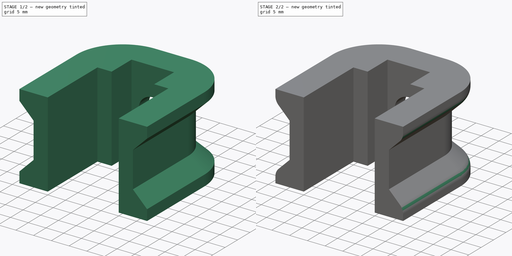
[diagram: build sequence overview — one tinted view per stage of 2, left to right]
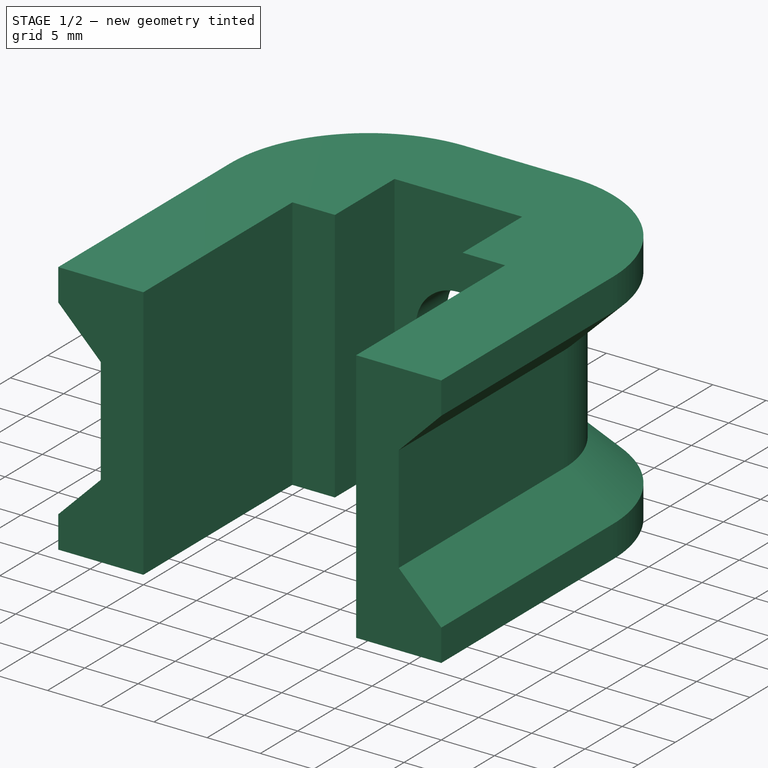
[diagram: stage 1 of 2 — iso view after this stage's code; geometry added in this stage tinted green]
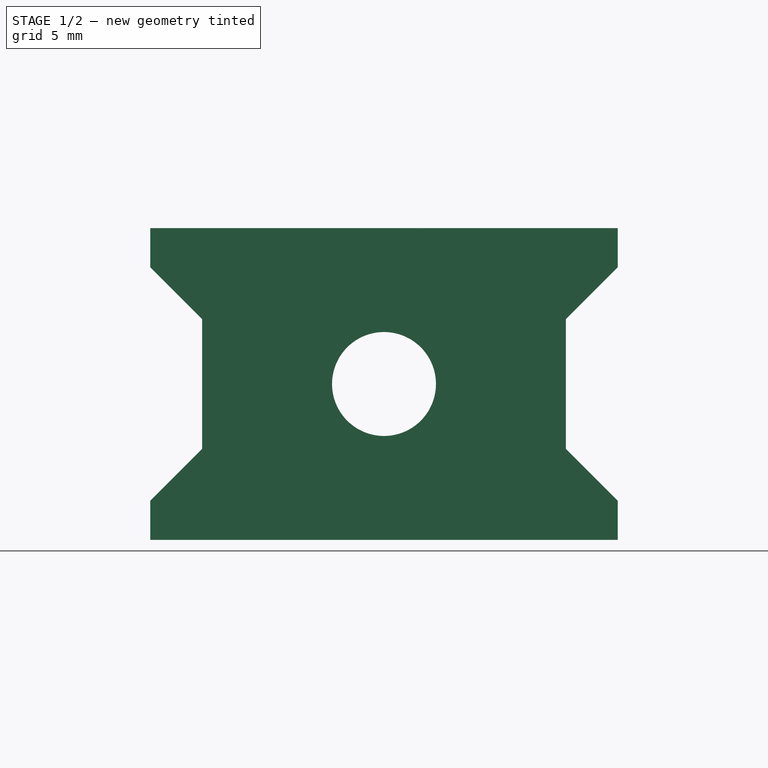
[diagram: stage 1 of 2 — front view after this stage's code; geometry added in this stage tinted green]
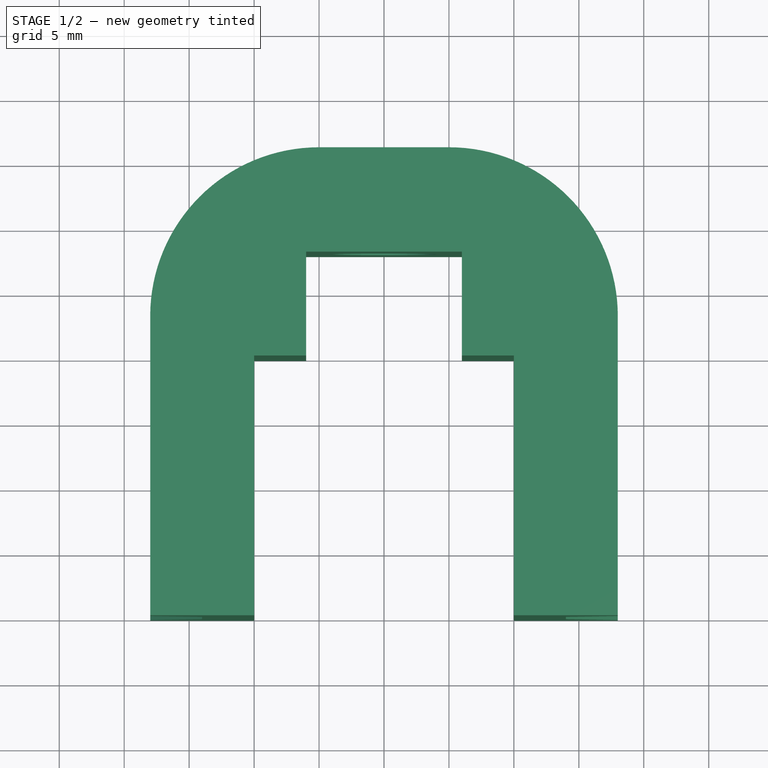
[diagram: stage 1 of 2 — top view after this stage's code; geometry added in this stage tinted green]
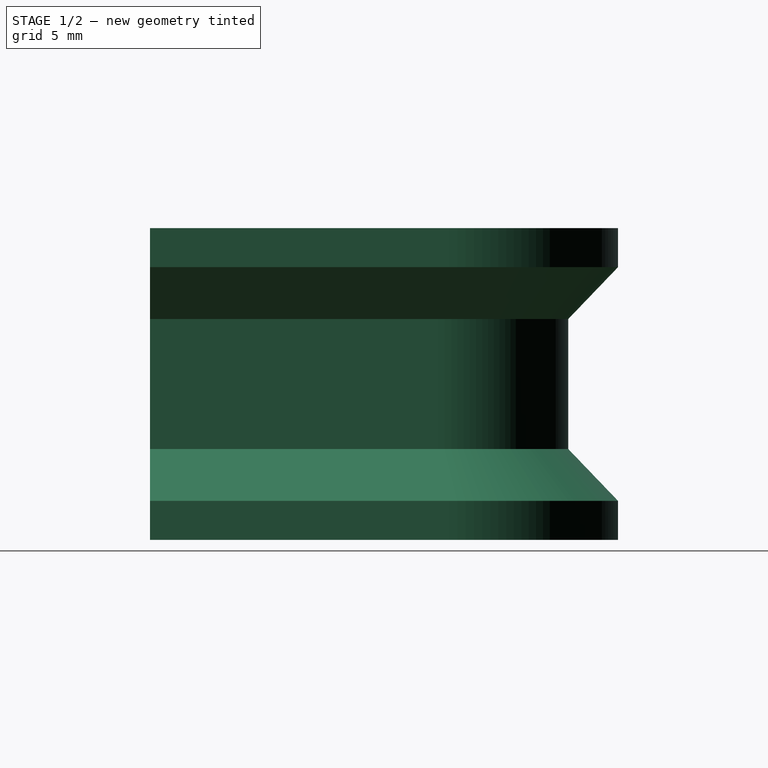
[diagram: stage 1 of 2 — right view after this stage's code; geometry added in this stage tinted green]
FCSTD DOCUMENT  (FreeCAD 0.19R24366 (Git))
Label: MGNAligner
License: Creative Commons Attribution-NonCommercial-ShareAlike
LicenseURL: http://creativecommons.org/licenses/by-nc-sa/4.0/
objects: Sketcher::SketchObject×8, PartDesign::AdditiveLoft×1, PartDesign::Pocket×1, PartDesign::Fillet×1, PartDesign::Body×1
note: 15 computed .brp shape members not serialized (recipe doc carries the construction recipe); baked Part::Feature solids carry a one-line shape summary decoded from their .brp

FEATURE [Sketcher::SketchObject] Sketch
  FullyConstrained = true
  MapMode = 5
  Support = -> [XY_Plane]
  sketch-geometry (22):
    g0: LineSegment StartX=-10 StartY=0 StartZ=0 EndX=-10 EndY=20 EndZ=0
    g1: LineSegment StartX=-10 StartY=20 StartZ=0 EndX=-6 EndY=20 EndZ=0
    g2: LineSegment StartX=-6 StartY=20 StartZ=0 EndX=-6 EndY=28 EndZ=0
    g3: LineSegment StartX=-6 StartY=28 StartZ=0 EndX=6 EndY=28 EndZ=0
    g4: LineSegment StartX=6 StartY=28 StartZ=0 EndX=6 EndY=20 EndZ=0
    g5: LineSegment StartX=6 StartY=20 StartZ=0 EndX=10 EndY=20 EndZ=0
    g6: LineSegment StartX=10 StartY=20 StartZ=0 EndX=10 EndY=0 EndZ=0
    g7: LineSegment StartX=-10 StartY=0 StartZ=0 EndX=10 EndY=0 EndZ=0
    g8: LineSegment StartX=-10 StartY=0 StartZ=0 EndX=-18 EndY=0 EndZ=0
    g9: LineSegment StartX=-18 StartY=0 StartZ=0 EndX=-18 EndY=23.0385 EndZ=0
    g10: LineSegment StartX=10 StartY=0 StartZ=0 EndX=18 EndY=0 EndZ=0
    g11: LineSegment StartX=18 StartY=0 StartZ=0 EndX=18 EndY=23.0385 EndZ=0
    g12: LineSegment StartX=-14 StartY=0 StartZ=0 EndX=-14 EndY=22.202 EndZ=0
    g13: LineSegment StartX=14 StartY=22.202 StartZ=0 EndX=14 EndY=0 EndZ=0
    g14: ArcOfCircle CenterX=-5 CenterY=23.0385 CenterZ=0 NormalX=0 NormalY=0 NormalZ=1 AngleXU=0 Radius=13 StartAngle=1.5708 EndAngle=3.14159
    g15: LineSegment StartX=-5 StartY=36.0385 StartZ=0 EndX=5 EndY=36.0385 EndZ=0
    g16: LineSegment StartX=-6 StartY=28 StartZ=0 EndX=-6 EndY=36 EndZ=0
    g17: ArcOfCircle CenterX=5 CenterY=23.0385 CenterZ=0 NormalX=0 NormalY=0 NormalZ=1 AngleXU=0 Radius=13 StartAngle=1e-16 EndAngle=1.5708
    g18: ArcOfCircle CenterX=-4 CenterY=22.202 CenterZ=0 NormalX=0 NormalY=0 NormalZ=1 AngleXU=0 Radius=10 StartAngle=1.5708 EndAngle=3.14159
    g19: LineSegment StartX=-4 StartY=32.202 StartZ=0 EndX=4 EndY=32.202 EndZ=0
    g20: ArcOfCircle CenterX=4 CenterY=22.202 CenterZ=0 NormalX=0 NormalY=0 NormalZ=1 AngleXU=0 Radius=10 StartAngle=0 EndAngle=1.5708
    g21: GeomPoint X=-6 Y=32 Z=0
  constraints (57):
    c: Vertical(g0)
    c: Coincident(g0,g1)
    c: Horizontal(g1)
    c: Coincident(g1,g2)
    c: Vertical(g2)
    c: Coincident(g2,g3)
    c: Horizontal(g3)
    c: Coincident(g3,g4)
    c: Vertical(g4)
    c: Coincident(g4,g5)
    c: Horizontal(g5)
    c: Coincident(g5,g6)
    c: Vertical(g6)
    c: Coincident(g0,g7)
    c: Coincident(g7,g6)
    c: Horizontal(g7)
    c: Equal(g1,g5)
    c: Distance(g7) = 20
    c: Equal(g2,g4)
    c: DistanceY(g0,g2) = 8
    c: Coincident(g0,g8)
    c: Horizontal(g8)
    c: Coincident(g8,g9)
    c: Vertical(g9)
    c: Coincident(g6,g10)
    c: Horizontal(g10)
    c: Coincident(g10,g11)
    c: Vertical(g11)
    c: Equal(g8,g10)
    c: DistanceY(g8,g0) = 20
    c: Vertical(g12)
    c: Vertical(g13)
    c: DistanceX(g8,g8) = 8
    c: Symmetric(g8,g0,g12)
    c: Symmetric(g6,g10,g13)
    c: DistanceX(g1,g4) = 12
    c: Equal(g12,g13)
    c: Tangent(g9,g14) = 1.5708
    c: Horizontal(g15)
    c: Coincident(g16,g2)
    c: Vertical(g16)
    c: Tangent(g11,g17) = -1.5708
    c: Equal(g17,g14)
    c: Equal(g16,g8)
    c: Tangent(g15,g17) = 1.5708
    c: Tangent(g14,g15) = 1.5708
    c: Tangent(g12,g18) = 1.5708
    c: Horizontal(g19)
    c: Tangent(g18,g19) = 1.5708
    c: Tangent(g13,g20) = 1.5708
    c: Tangent(g19,g20) = 1.5708
    c: PointOnObject(g16,g14)
    c: Symmetric(g16,g2,g21)
    c: PointOnObject(g21,g18)
    c: Radius(g14) = 13
    c: Radius(g18) = 10
    c: Symmetric(g8,g10,g-1)
FEATURE [Sketcher::SketchObject] Sketch001
  ExternalGeometry = -> [Sketch]
  FullyConstrained = true
  MapMode = 5
  Support = -> [XY_Plane]
  sketch-geometry (14):
    g0: LineSegment StartX=-18 StartY=0 StartZ=0 EndX=-10 EndY=0 EndZ=0
    g1: LineSegment StartX=-10 StartY=0 StartZ=0 EndX=-10 EndY=20 EndZ=0
    g2: LineSegment StartX=-10 StartY=20 StartZ=0 EndX=-6 EndY=20 EndZ=0
    g3: LineSegment StartX=-6 StartY=20 StartZ=0 EndX=-6 EndY=28 EndZ=0
    g4: LineSegment StartX=-6 StartY=28 StartZ=0 EndX=6 EndY=28 EndZ=0
    g5: LineSegment StartX=6 StartY=28 StartZ=0 EndX=6 EndY=20 EndZ=0
    g6: LineSegment StartX=6 StartY=20 StartZ=0 EndX=10 EndY=20 EndZ=0
    g7: LineSegment StartX=10 StartY=20 StartZ=0 EndX=10 EndY=0 EndZ=0
    g8: LineSegment StartX=10 StartY=0 StartZ=0 EndX=18 EndY=0 EndZ=0
    g9: LineSegment StartX=18 StartY=0 StartZ=0 EndX=18 EndY=23.0385 EndZ=0
    g10: LineSegment StartX=-18 StartY=0 StartZ=0 EndX=-18 EndY=23.0385 EndZ=0
    g11: ArcOfCircle CenterX=-5 CenterY=23.0385 CenterZ=0 NormalX=0 NormalY=0 NormalZ=1 AngleXU=0 Radius=13 StartAngle=1.5708 EndAngle=3.14159
    g12: ArcOfCircle CenterX=5 CenterY=23.0385 CenterZ=0 NormalX=0 NormalY=0 NormalZ=1 AngleXU=0 Radius=13 StartAngle=0 EndAngle=1.5708
    g13: LineSegment StartX=-5 StartY=36.0385 StartZ=0 EndX=5 EndY=36.0385 EndZ=0
  constraints (30):
    c: Coincident(g-4,g0)
    c: Coincident(g0,g-4)
    c: Coincident(g0,g1)
    c: Coincident(g1,g-8)
    c: Coincident(g1,g2)
    c: Coincident(g2,g-8)
    c: Coincident(g2,g3)
    c: Coincident(g3,g-7)
    c: Coincident(g3,g4)
    c: Coincident(g4,g-7)
    c: Coincident(g4,g5)
    c: Coincident(g5,g-9)
    c: Coincident(g5,g6)
    c: Coincident(g6,g-9)
    c: Coincident(g6,g7)
    c: Coincident(g7,g-5)
    c: Coincident(g7,g8)
    c: Coincident(g8,g-5)
    c: Coincident(g8,g9)
    c: Coincident(g9,g-6)
    c: Coincident(g0,g10)
    c: Coincident(g10,g-3)
    c: Coincident(g11,g10)
    c: Coincident(g11,g-3)
    c: Equal(g11,g-3)
    c: Coincident(g12,g-6)
    c: Coincident(g12,g9)
    c: Equal(g12,g-6)
    c: Coincident(g13,g11)
    c: Coincident(g13,g12)
FEATURE [Sketcher::SketchObject] Sketch002
  AttachmentOffset = pos=(0,0,7) rot=(0,0,1;0rad)
  ExternalGeometry = -> [Sketch]
  FullyConstrained = true
  MapMode = 5
  Placement = pos=(0,0,7) rot=(0,0,1;0rad)
  Support = -> [XY_Plane]
  expr: .AttachmentOffset.Base.z = <<Sketch003>>.AttachmentOffset.Base.z + 4mm
  sketch-geometry (14):
    g0: ArcOfCircle CenterX=-4 CenterY=22.202 CenterZ=0 NormalX=0 NormalY=0 NormalZ=1 AngleXU=0 Radius=10 StartAngle=1.5708 EndAngle=3.14159
    g1: ArcOfCircle CenterX=4 CenterY=22.202 CenterZ=0 NormalX=0 NormalY=0 NormalZ=1 AngleXU=0 Radius=10 StartAngle=0 EndAngle=1.5708
    g2: LineSegment StartX=-4 StartY=32.202 StartZ=0 EndX=4 EndY=32.202 EndZ=0
    g3: LineSegment StartX=-6 StartY=28 StartZ=0 EndX=6 EndY=28 EndZ=0
    g4: LineSegment StartX=6 StartY=28 StartZ=0 EndX=6 EndY=20 EndZ=0
    g5: LineSegment StartX=6 StartY=20 StartZ=0 EndX=10 EndY=20 EndZ=0
    g6: LineSegment StartX=10 StartY=20 StartZ=0 EndX=10 EndY=0 EndZ=0
    g7: LineSegment StartX=-14 StartY=22.202 StartZ=0 EndX=-14 EndY=0 EndZ=0
    g8: LineSegment StartX=14 StartY=22.202 StartZ=0 EndX=14 EndY=0 EndZ=0
    g9: LineSegment StartX=14 StartY=0 StartZ=0 EndX=10 EndY=0 EndZ=0
    g10: LineSegment StartX=-14 StartY=0 StartZ=0 EndX=-10 EndY=0 EndZ=0
    g11: LineSegment StartX=-10 StartY=0 StartZ=0 EndX=-10 EndY=20 EndZ=0
    g12: LineSegment StartX=-10 StartY=20 StartZ=0 EndX=-6 EndY=20 EndZ=0
    g13: LineSegment StartX=-6 StartY=20 StartZ=0 EndX=-6 EndY=28 EndZ=0
  constraints (30):
    c: Coincident(g0,g-9)
    c: Coincident(g0,g-9)
    c: Coincident(g1,g-10)
    c: Coincident(g1,g-10)
    c: Equal(g0,g-9)
    c: Coincident(g2,g0)
    c: Coincident(g2,g1)
    c: Coincident(g3,g-7)
    c: Coincident(g3,g-8)
    c: Coincident(g4,g3)
    c: Coincident(g4,g-8)
    c: Coincident(g5,g4)
    c: Coincident(g5,g-5)
    c: Coincident(g6,g5)
    c: Coincident(g6,g-5)
    c: Coincident(g7,g0)
    c: Coincident(g7,g-3)
    c: Coincident(g8,g1)
    c: Coincident(g8,g-6)
    c: Coincident(g9,g8)
    c: Coincident(g9,g6)
    c: Coincident(g10,g7)
    c: Coincident(g10,g-4)
    c: Coincident(g11,g10)
    c: Coincident(g11,g-4)
    c: Coincident(g12,g11)
    c: Coincident(g12,g-7)
    c: Coincident(g13,g12)
    c: Coincident(g13,g3)
    c: Equal(g1,g-10)
FEATURE [Sketcher::SketchObject] Sketch003
  AttachmentOffset = pos=(0,0,3) rot=(0,0,1;0rad)
  ExternalGeometry = -> [Sketch]
  FullyConstrained = true
  MapMode = 5
  Placement = pos=(0,0,3) rot=(0,0,1;0rad)
  Support = -> [XY_Plane]
  expr: .AttachmentOffset.Base.z = <<Sketch001>>.AttachmentOffset.Base.z + 3mm
  sketch-geometry (14):
    g0: LineSegment StartX=-18 StartY=0 StartZ=0 EndX=-10 EndY=0 EndZ=0
    g1: LineSegment StartX=-10 StartY=0 StartZ=0 EndX=-10 EndY=20 EndZ=0
    g2: LineSegment StartX=-10 StartY=20 StartZ=0 EndX=-6 EndY=20 EndZ=0
    g3: LineSegment StartX=-6 StartY=20 StartZ=0 EndX=-6 EndY=28 EndZ=0
    g4: LineSegment StartX=-6 StartY=28 StartZ=0 EndX=6 EndY=28 EndZ=0
    g5: LineSegment StartX=6 StartY=28 StartZ=0 EndX=6 EndY=20 EndZ=0
    g6: LineSegment StartX=6 StartY=20 StartZ=0 EndX=10 EndY=20 EndZ=0
    g7: LineSegment StartX=10 StartY=20 StartZ=0 EndX=10 EndY=0 EndZ=0
    g8: LineSegment StartX=10 StartY=0 StartZ=0 EndX=18 EndY=0 EndZ=0
    g9: LineSegment StartX=18 StartY=0 StartZ=0 EndX=18 EndY=23.0385 EndZ=0
    g10: LineSegment StartX=-18 StartY=0 StartZ=0 EndX=-18 EndY=23.0385 EndZ=0
    g11: ArcOfCircle CenterX=-5 CenterY=23.0385 CenterZ=0 NormalX=0 NormalY=0 NormalZ=1 AngleXU=0 Radius=13 StartAngle=1.5708 EndAngle=3.14159
    g12: ArcOfCircle CenterX=5 CenterY=23.0385 CenterZ=0 NormalX=0 NormalY=0 NormalZ=1 AngleXU=0 Radius=13 StartAngle=1e-16 EndAngle=1.5708
    g13: LineSegment StartX=-5 StartY=36.0385 StartZ=0 EndX=5 EndY=36.0385 EndZ=0
  constraints (30):
    c: Coincident(g-4,g0)
    c: Coincident(g0,g-4)
    c: Coincident(g0,g1)
    c: Coincident(g1,g-8)
    c: Coincident(g1,g2)
    c: Coincident(g2,g-8)
    c: Coincident(g2,g3)
    c: Coincident(g3,g-7)
    c: Coincident(g3,g4)
    c: Coincident(g4,g-7)
    c: Coincident(g4,g5)
    c: Coincident(g5,g-9)
    c: Coincident(g5,g6)
    c: Coincident(g6,g-9)
    c: Coincident(g6,g7)
    c: Coincident(g7,g-5)
    c: Coincident(g7,g8)
    c: Coincident(g8,g-5)
    c: Coincident(g8,g9)
    c: Coincident(g9,g-6)
    c: Coincident(g0,g10)
    c: Coincident(g10,g-3)
    c: Coincident(g11,g10)
    c: Coincident(g11,g-3)
    c: Equal(g11,g-3)
    c: Coincident(g12,g-6)
    c: Coincident(g12,g9)
    c: Equal(g12,g-6)
    c: Coincident(g13,g11)
    c: Coincident(g13,g12)
FEATURE [Sketcher::SketchObject] Sketch004
  AttachmentOffset = pos=(0,0,21) rot=(0,0,1;0rad)
  ExternalGeometry = -> [Sketch]
  FullyConstrained = true
  MapMode = 5
  Placement = pos=(0,0,21) rot=(0,0,1;0rad)
  Support = -> [XY_Plane]
  expr: .AttachmentOffset.Base.z = <<Sketch006>>.AttachmentOffset.Base.z + 4mm
  sketch-geometry (14):
    g0: LineSegment StartX=-18 StartY=0 StartZ=0 EndX=-10 EndY=0 EndZ=0
    g1: LineSegment StartX=-10 StartY=0 StartZ=0 EndX=-10 EndY=20 EndZ=0
    g2: LineSegment StartX=-10 StartY=20 StartZ=0 EndX=-6 EndY=20 EndZ=0
    g3: LineSegment StartX=-6 StartY=20 StartZ=0 EndX=-6 EndY=28 EndZ=0
    g4: LineSegment StartX=-6 StartY=28 StartZ=0 EndX=6 EndY=28 EndZ=0
    g5: LineSegment StartX=6 StartY=28 StartZ=0 EndX=6 EndY=20 EndZ=0
    g6: LineSegment StartX=6 StartY=20 StartZ=0 EndX=10 EndY=20 EndZ=0
    g7: LineSegment StartX=10 StartY=20 StartZ=0 EndX=10 EndY=0 EndZ=0
    g8: LineSegment StartX=10 StartY=0 StartZ=0 EndX=18 EndY=0 EndZ=0
    g9: LineSegment StartX=18 StartY=0 StartZ=0 EndX=18 EndY=23.0385 EndZ=0
    g10: LineSegment StartX=-18 StartY=0 StartZ=0 EndX=-18 EndY=23.0385 EndZ=0
    g11: ArcOfCircle CenterX=-5 CenterY=23.0385 CenterZ=0 NormalX=0 NormalY=0 NormalZ=1 AngleXU=0 Radius=13 StartAngle=1.5708 EndAngle=3.14159
    g12: ArcOfCircle CenterX=5 CenterY=23.0385 CenterZ=0 NormalX=0 NormalY=0 NormalZ=1 AngleXU=0 Radius=13 StartAngle=0 EndAngle=1.5708
    g13: LineSegment StartX=-5 StartY=36.0385 StartZ=0 EndX=5 EndY=36.0385 EndZ=0
  constraints (30):
    c: Coincident(g-4,g0)
    c: Coincident(g0,g-4)
    c: Coincident(g0,g1)
    c: Coincident(g1,g-8)
    c: Coincident(g1,g2)
    c: Coincident(g2,g-8)
    c: Coincident(g2,g3)
    c: Coincident(g3,g-7)
    c: Coincident(g3,g4)
    c: Coincident(g4,g-7)
    c: Coincident(g4,g5)
    c: Coincident(g5,g-9)
    c: Coincident(g5,g6)
    c: Coincident(g6,g-9)
    c: Coincident(g6,g7)
    c: Coincident(g7,g-5)
    c: Coincident(g7,g8)
    c: Coincident(g8,g-5)
    c: Coincident(g8,g9)
    c: Coincident(g9,g-6)
    c: Coincident(g0,g10)
    c: Coincident(g10,g-3)
    c: Coincident(g11,g10)
    c: Coincident(g11,g-3)
    c: Equal(g11,g-3)
    c: Coincident(g12,g-6)
    c: Coincident(g12,g9)
    c: Equal(g12,g-6)
    c: Coincident(g13,g11)
    c: Coincident(g13,g12)
FEATURE [Sketcher::SketchObject] Sketch005
  AttachmentOffset = pos=(0,0,24) rot=(0,0,1;0rad)
  ExternalGeometry = -> [Sketch]
  FullyConstrained = true
  MapMode = 5
  Placement = pos=(0,0,24) rot=(0,0,1;0rad)
  Support = -> [XY_Plane]
  expr: .AttachmentOffset.Base.z = <<Sketch004>>.AttachmentOffset.Base.z + 3mm
  sketch-geometry (14):
    g0: LineSegment StartX=-18 StartY=0 StartZ=0 EndX=-10 EndY=0 EndZ=0
    g1: LineSegment StartX=-10 StartY=0 StartZ=0 EndX=-10 EndY=20 EndZ=0
    g2: LineSegment StartX=-10 StartY=20 StartZ=0 EndX=-6 EndY=20 EndZ=0
    g3: LineSegment StartX=-6 StartY=20 StartZ=0 EndX=-6 EndY=28 EndZ=0
    g4: LineSegment StartX=-6 StartY=28 StartZ=0 EndX=6 EndY=28 EndZ=0
    g5: LineSegment StartX=6 StartY=28 StartZ=0 EndX=6 EndY=20 EndZ=0
    g6: LineSegment StartX=6 StartY=20 StartZ=0 EndX=10 EndY=20 EndZ=0
    g7: LineSegment StartX=10 StartY=20 StartZ=0 EndX=10 EndY=0 EndZ=0
    g8: LineSegment StartX=10 StartY=0 StartZ=0 EndX=18 EndY=0 EndZ=0
    g9: LineSegment StartX=18 StartY=0 StartZ=0 EndX=18 EndY=23.0385 EndZ=0
    g10: LineSegment StartX=-18 StartY=0 StartZ=0 EndX=-18 EndY=23.0385 EndZ=0
    g11: ArcOfCircle CenterX=-5 CenterY=23.0385 CenterZ=0 NormalX=0 NormalY=0 NormalZ=1 AngleXU=0 Radius=13 StartAngle=1.5708 EndAngle=3.14159
    g12: ArcOfCircle CenterX=5 CenterY=23.0385 CenterZ=0 NormalX=0 NormalY=0 NormalZ=1 AngleXU=0 Radius=13 StartAngle=0 EndAngle=1.5708
    g13: LineSegment StartX=-5 StartY=36.0385 StartZ=0 EndX=5 EndY=36.0385 EndZ=0
  constraints (30):
    c: Coincident(g-4,g0)
    c: Coincident(g0,g-4)
    c: Coincident(g0,g1)
    c: Coincident(g1,g-8)
    c: Coincident(g1,g2)
    c: Coincident(g2,g-8)
    c: Coincident(g2,g3)
    c: Coincident(g3,g-7)
    c: Coincident(g3,g4)
    c: Coincident(g4,g-7)
    c: Coincident(g4,g5)
    c: Coincident(g5,g-9)
    c: Coincident(g5,g6)
    c: Coincident(g6,g-9)
    c: Coincident(g6,g7)
    c: Coincident(g7,g-5)
    c: Coincident(g7,g8)
    c: Coincident(g8,g-5)
    c: Coincident(g8,g9)
    c: Coincident(g9,g-6)
    c: Coincident(g0,g10)
    c: Coincident(g10,g-3)
    c: Coincident(g11,g10)
    c: Coincident(g11,g-3)
    c: Equal(g11,g-3)
    c: Coincident(g12,g-6)
    c: Coincident(g12,g9)
    c: Equal(g12,g-6)
    c: Coincident(g13,g11)
    c: Coincident(g13,g12)
FEATURE [Sketcher::SketchObject] Sketch006
  AttachmentOffset = pos=(0,0,17) rot=(0,0,1;0rad)
  ExternalGeometry = -> [Sketch]
  FullyConstrained = true
  MapMode = 5
  Placement = pos=(0,0,17) rot=(0,0,1;0rad)
  Support = -> [XY_Plane]
  expr: .AttachmentOffset.Base.z = <<Sketch002>>.AttachmentOffset.Base.z + 10mm
  sketch-geometry (14):
    g0: ArcOfCircle CenterX=-4 CenterY=22.202 CenterZ=0 NormalX=0 NormalY=0 NormalZ=1 AngleXU=0 Radius=10 StartAngle=1.5708 EndAngle=3.14159
    g1: ArcOfCircle CenterX=4 CenterY=22.202 CenterZ=0 NormalX=0 NormalY=0 NormalZ=1 AngleXU=0 Radius=10 StartAngle=0 EndAngle=1.5708
    g2: LineSegment StartX=-4 StartY=32.202 StartZ=0 EndX=4 EndY=32.202 EndZ=0
    g3: LineSegment StartX=-6 StartY=28 StartZ=0 EndX=6 EndY=28 EndZ=0
    g4: LineSegment StartX=6 StartY=28 StartZ=0 EndX=6 EndY=20 EndZ=0
    g5: LineSegment StartX=6 StartY=20 StartZ=0 EndX=10 EndY=20 EndZ=0
    g6: LineSegment StartX=10 StartY=20 StartZ=0 EndX=10 EndY=0 EndZ=0
    g7: LineSegment StartX=-14 StartY=22.202 StartZ=0 EndX=-14 EndY=0 EndZ=0
    g8: LineSegment StartX=14 StartY=22.202 StartZ=0 EndX=14 EndY=0 EndZ=0
    g9: LineSegment StartX=14 StartY=0 StartZ=0 EndX=10 EndY=0 EndZ=0
    g10: LineSegment StartX=-14 StartY=0 StartZ=0 EndX=-10 EndY=0 EndZ=0
    g11: LineSegment StartX=-10 StartY=0 StartZ=0 EndX=-10 EndY=20 EndZ=0
    g12: LineSegment StartX=-10 StartY=20 StartZ=0 EndX=-6 EndY=20 EndZ=0
    g13: LineSegment StartX=-6 StartY=20 StartZ=0 EndX=-6 EndY=28 EndZ=0
  constraints (30):
    c: Coincident(g0,g-9)
    c: Coincident(g0,g-9)
    c: Coincident(g1,g-10)
    c: Coincident(g1,g-10)
    c: Equal(g0,g-9)
    c: Coincident(g2,g0)
    c: Coincident(g2,g1)
    c: Coincident(g3,g-7)
    c: Coincident(g3,g-8)
    c: Coincident(g4,g3)
    c: Coincident(g4,g-8)
    c: Coincident(g5,g4)
    c: Coincident(g5,g-5)
    c: Coincident(g6,g5)
    c: Coincident(g6,g-5)
    c: Coincident(g7,g0)
    c: Coincident(g7,g-3)
    c: Coincident(g8,g1)
    c: Coincident(g8,g-6)
    c: Coincident(g9,g8)
    c: Coincident(g9,g6)
    c: Coincident(g10,g7)
    c: Coincident(g10,g-4)
    c: Coincident(g11,g10)
    c: Coincident(g11,g-4)
    c: Coincident(g12,g11)
    c: Coincident(g12,g-7)
    c: Coincident(g13,g12)
    c: Coincident(g13,g3)
    c: Equal(g1,g-10)
FEATURE [PartDesign::AdditiveLoft] AdditiveLoft
  Closed = false
  Profile = -> Sketch001
  Refine = true
  Ruled = true
  Sections = -> [Sketch003,Sketch002,Sketch006,Sketch004,Sketch005]
FEATURE [Sketcher::SketchObject] Sketch007
  AttachmentOffset = pos=(0,12,0) rot=(0,0,1;0rad)
  FullyConstrained = true
  MapMode = 5
  Placement = pos=(0,-2.7e-15,12) rot=(1,0,0;1.5708rad)
  Support = -> [XZ_Plane]
  expr: .AttachmentOffset.Base.y = <<Sketch005>>.AttachmentOffset.Base.z / 2
  sketch-geometry (1):
    g0: Circle CenterX=0 CenterY=0 CenterZ=0 NormalX=0 NormalY=0 NormalZ=1 AngleXU=0 Radius=4
  constraints (2):
    c: Coincident(g0,g-1)
    c: Radius(g0) = 4
FEATURE [PartDesign::Pocket] Pocket
  BaseFeature = -> AdditiveLoft
  Length = 5
  Length2 = 100
  Profile = -> Sketch007
  Refine = true
  Type = 1
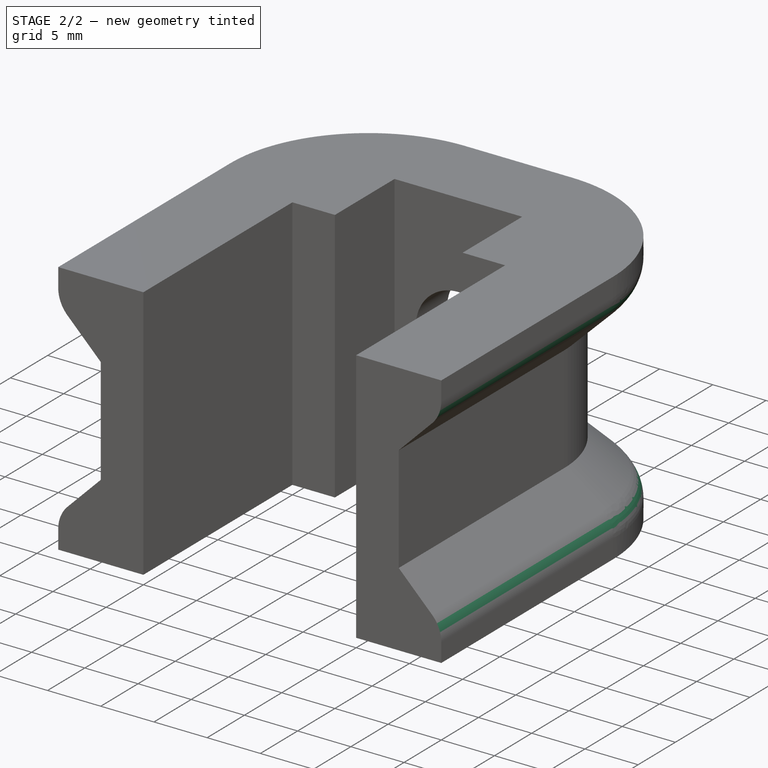
[diagram: stage 2 of 2 — iso view after this stage's code; geometry added in this stage tinted green]
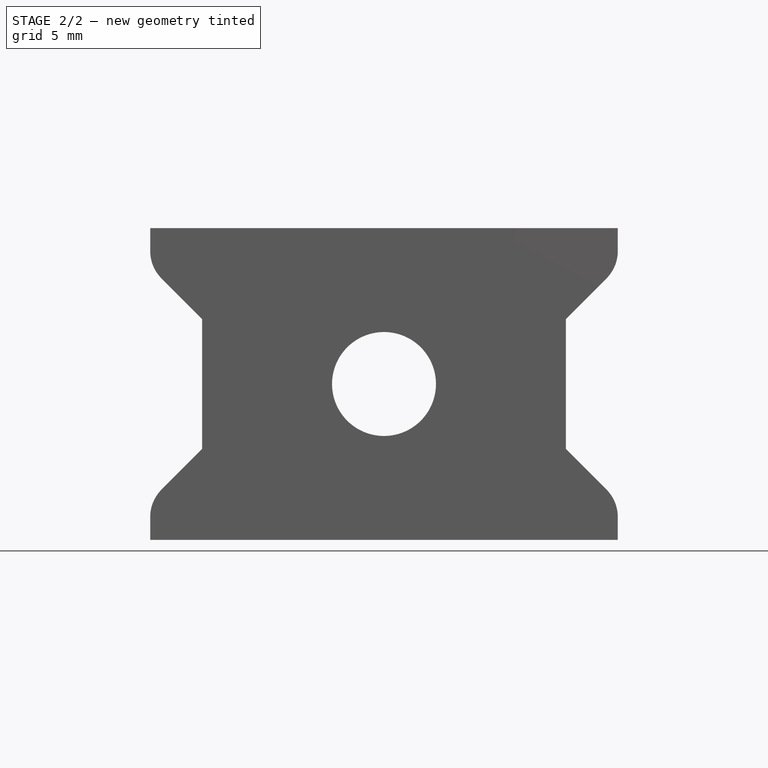
[diagram: stage 2 of 2 — front view after this stage's code; geometry added in this stage tinted green]
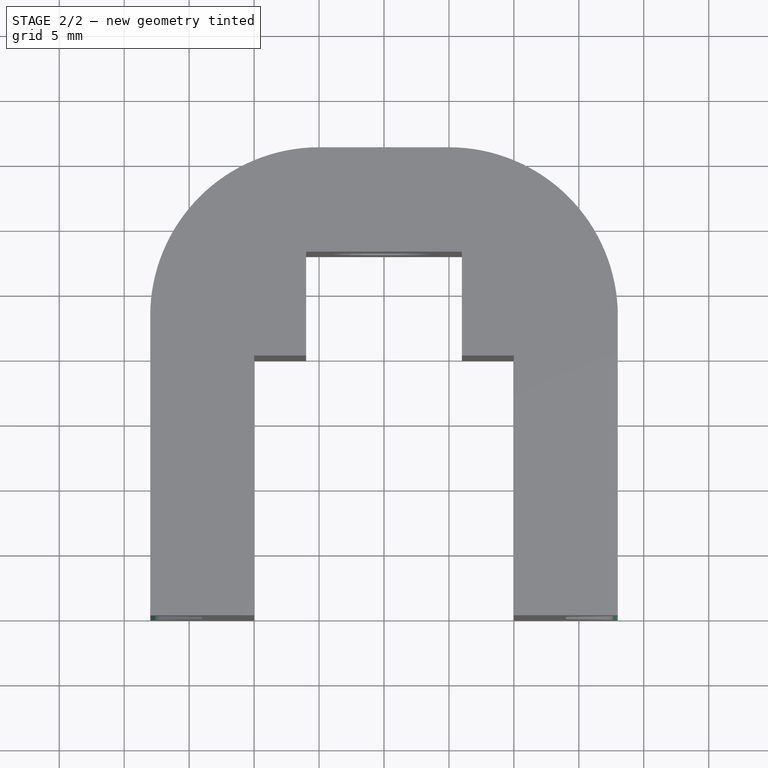
[diagram: stage 2 of 2 — top view after this stage's code; geometry added in this stage tinted green]
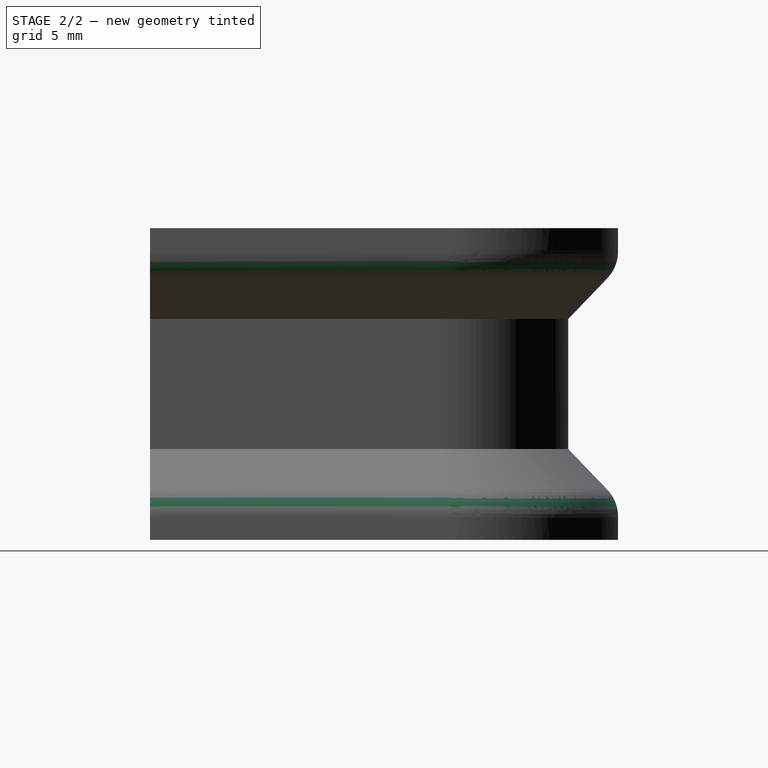
[diagram: stage 2 of 2 — right view after this stage's code; geometry added in this stage tinted green]
FEATURE [PartDesign::Fillet] Fillet
  Base = -> Pocket [Edge26,Edge88]
  BaseFeature = -> Pocket
  Radius = 3
  Refine = true
  SupportTransform = false
FEATURE [PartDesign::Body] Body
  Group = -> [Sketch,Sketch001,Sketch003,Sketch002,Sketch006,Sketch004,Sketch005,AdditiveLoft,Sketch007,Pocket,Fillet]
  Origin = -> Origin
  Tip = -> Fillet
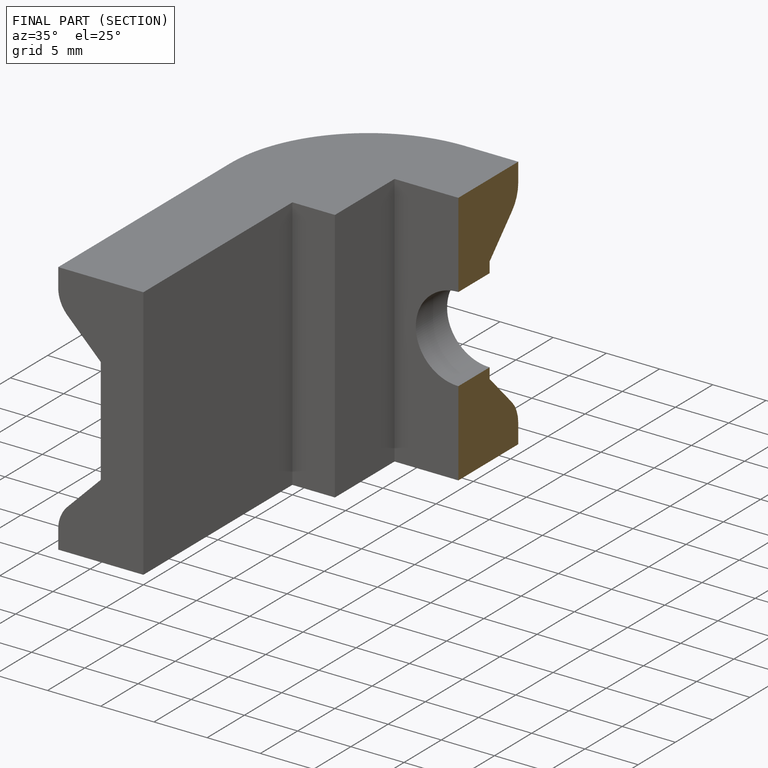
[diagram: finished part — half-section view (interior)]
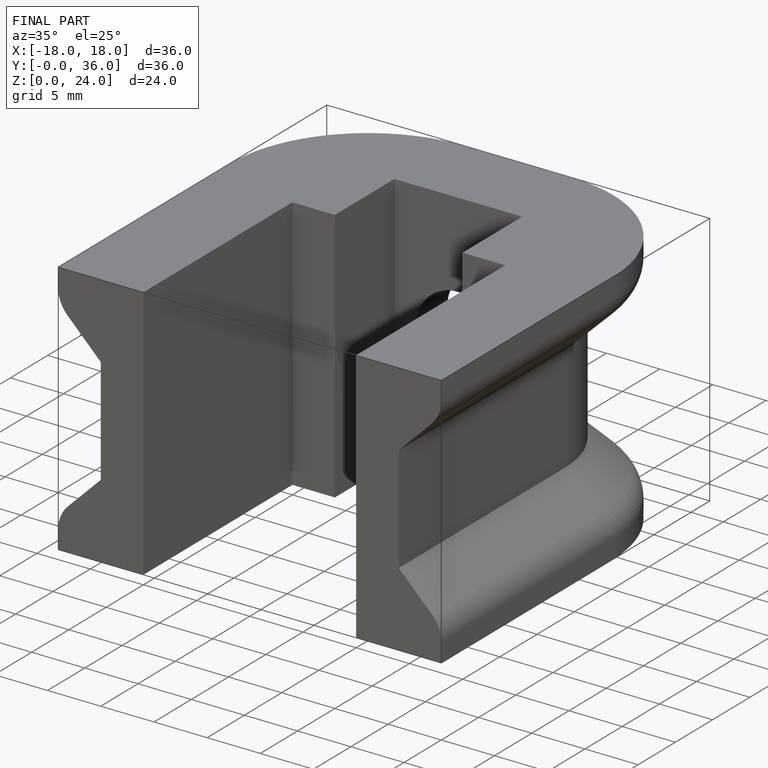
[diagram: finished part — iso view with bounding-box wireframe]
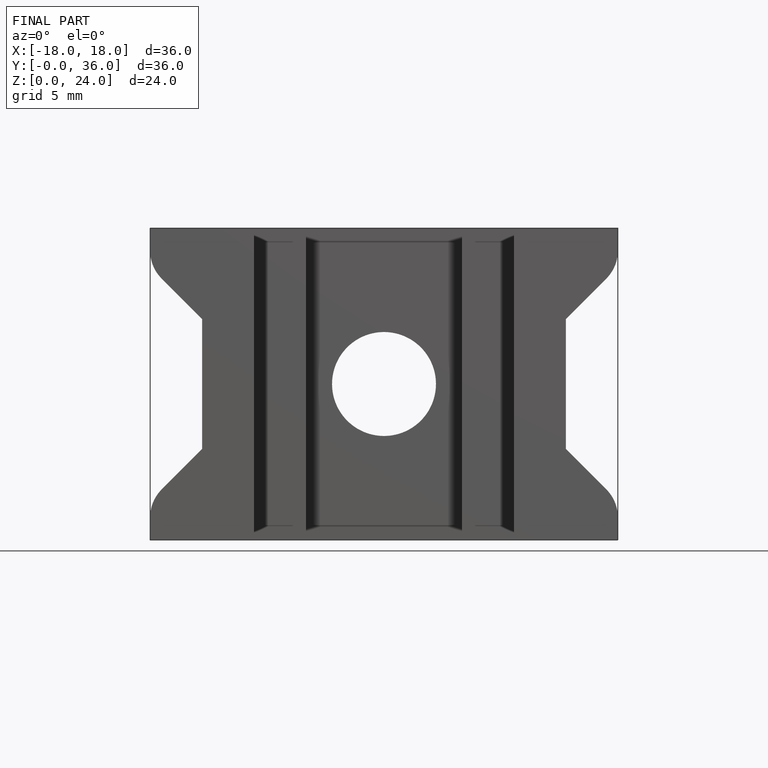
[diagram: finished part — front view with bounding-box wireframe]
